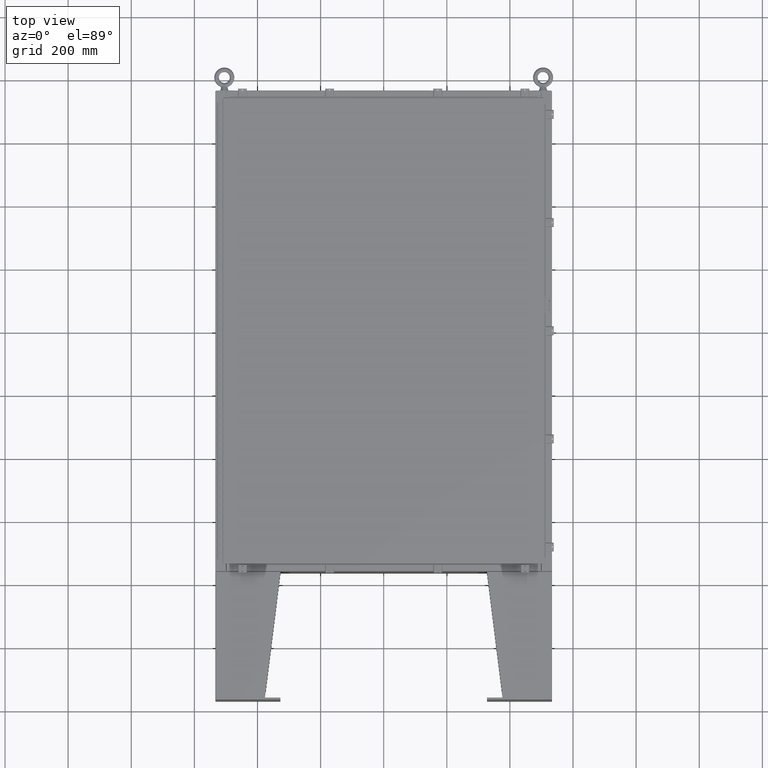
[diagram: clean part render]
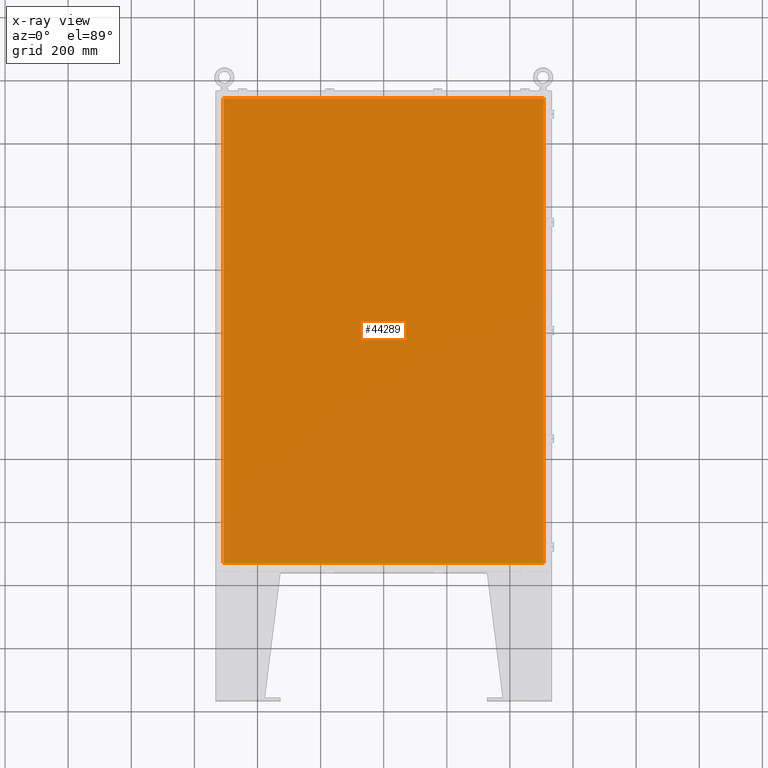
[diagram: x-ray — body ghosted, one internal face saturated and labeled with its STEP entity id]
A machine part, top view, then the same camera in x-ray: the body is ghosted and one INTERNAL B-rep face — a face not visible from any outside direction — is saturated and labeled: STEP entity #44289.
In plain terms, the highlighted planar face has unit normal (0, 0, -1).
Its self-contained STEP definition (entity closure, byte-faithful):
#1167 = CARTESIAN_POINT ( 'NONE',  ( 19.99029999999999800, 29.00630000000000700, -0.07470000000000000300 ) ) ;
#1322 = ORIENTED_EDGE ( 'NONE', *, *, #46785, .F. ) ;
#1387 = VERTEX_POINT ( 'NONE', #64114 ) ;
#1417 = VERTEX_POINT ( 'NONE', #44396 ) ;
#2107 = DIRECTION ( 'NONE',  ( 0.0000000000000000000, 1.000000000000000000, 0.0000000000000000000 ) ) ;
#4395 = VECTOR ( 'NONE', #64868, 39.37007874015748100 ) ;
#11376 = AXIS2_PLACEMENT_3D ( 'NONE', #55744, #50806, #19465 ) ;
#12285 = LINE ( 'NONE', #59839, #64647 ) ;
#14836 = VERTEX_POINT ( 'NONE', #37297 ) ;
#15585 = ORIENTED_EDGE ( 'NONE', *, *, #48062, .F. ) ;
#18462 = LINE ( 'NONE', #49397, #4395 ) ;
#19465 = DIRECTION ( 'NONE',  ( -1.000000000000000000, 0.0000000000000000000, -0.0000000000000000000 ) ) ;
#23720 = DIRECTION ( 'NONE',  ( 0.0000000000000000000, -1.000000000000000000, 0.0000000000000000000 ) ) ;
#24981 = ORIENTED_EDGE ( 'NONE', *, *, #30474, .F. ) ;
#27111 = CARTESIAN_POINT ( 'NONE',  ( 19.99029999999999800, 29.00630000000001400, -0.07469999999999804600 ) ) ;
#30474 = EDGE_CURVE ( 'NONE', #33680, #1417, #53123, .T. ) ;
#33680 = VERTEX_POINT ( 'NONE', #1167 ) ;
#37297 = CARTESIAN_POINT ( 'NONE',  ( -19.99030000000000800, -29.00629999999998900, -0.07470000000000000300 ) ) ;
#43051 = DIRECTION ( 'NONE',  ( -1.000000000000000000, -0.0000000000000000000, -0.0000000000000000000 ) ) ;
#44289 = ADVANCED_FACE ( 'NONE', ( #64697 ), #45613, .T. ) ;
#44396 = CARTESIAN_POINT ( 'NONE',  ( -19.99030000000000500, 29.00630000000000700, -0.07470000000000000300 ) ) ;
#44625 = CARTESIAN_POINT ( 'NONE',  ( -19.99030000000001600, 29.00630000000000700, -0.07469999999999150900 ) ) ;
#45613 = PLANE ( 'NONE',  #11376 ) ;
#46785 = EDGE_CURVE ( 'NONE', #14836, #1387, #18462, .T. ) ;
#48062 = EDGE_CURVE ( 'NONE', #1417, #14836, #54382, .T. ) ;
#48387 = ORIENTED_EDGE ( 'NONE', *, *, #60668, .F. ) ;
#49397 = CARTESIAN_POINT ( 'NONE',  ( -19.99030000000001600, -29.00629999999999600, -0.07469999999999804600 ) ) ;
#50806 = DIRECTION ( 'NONE',  ( 0.0000000000000000000, 0.0000000000000000000, -1.000000000000000000 ) ) ;
#53123 = LINE ( 'NONE', #27111, #65343 ) ;
#54382 = LINE ( 'NONE', #44625, #65012 ) ;
#55637 = EDGE_LOOP ( 'NONE', ( #48387, #1322, #15585, #24981 ) ) ;
#55744 = CARTESIAN_POINT ( 'NONE',  ( 0.0000000000000000000, 0.0000000000000000000, -0.07470000000000000300 ) ) ;
#59839 = CARTESIAN_POINT ( 'NONE',  ( 19.99030000000000100, -29.00629999999998900, -0.07469999999999804600 ) ) ;
#60668 = EDGE_CURVE ( 'NONE', #1387, #33680, #12285, .T. ) ;
#64114 = CARTESIAN_POINT ( 'NONE',  ( 19.99029999999999800, -29.00629999999998900, -0.07470000000000000300 ) ) ;
#64647 = VECTOR ( 'NONE', #2107, 39.37007874015748100 ) ;
#64697 = FACE_OUTER_BOUND ( 'NONE', #55637, .T. ) ;
#64868 = DIRECTION ( 'NONE',  ( 1.000000000000000000, -0.0000000000000000000, -0.0000000000000000000 ) ) ;
#65012 = VECTOR ( 'NONE', #23720, 39.37007874015748100 ) ;
#65343 = VECTOR ( 'NONE', #43051, 39.37007874015748100 ) ;